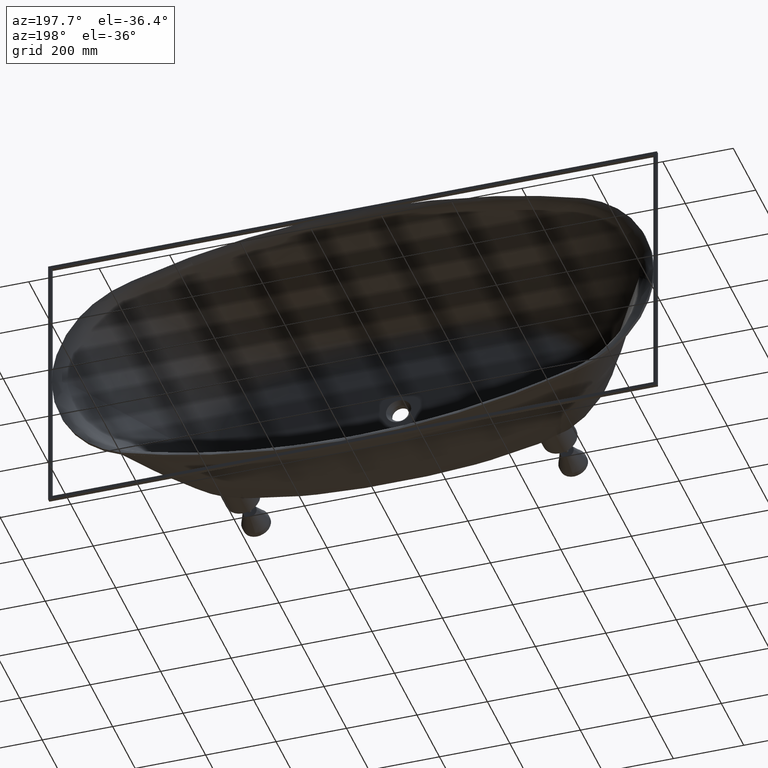
[diagram: clean part render]
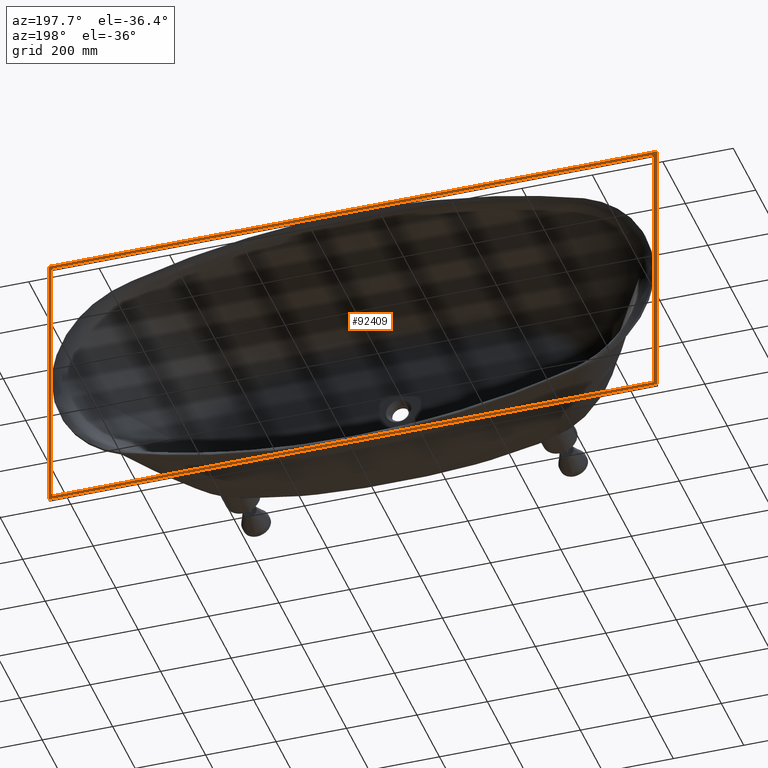
[diagram: same view with one face highlighted and labeled with its STEP entity id]
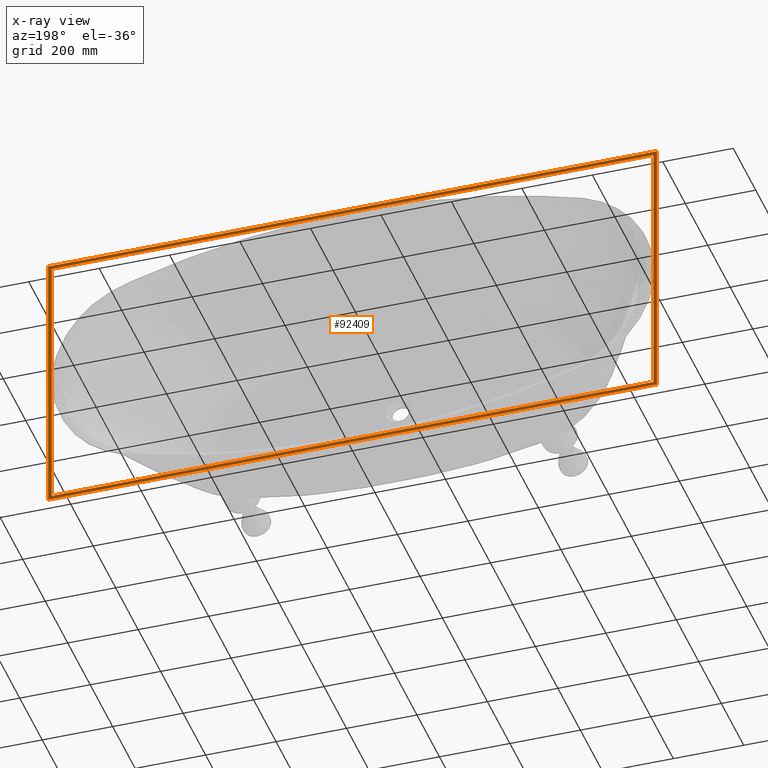
[diagram: x-ray of the same camera — body ghosted, the highlighted face saturated]
A machine part, auxiliary view. The second image highlights one B-rep face of the part: STEP entity #92409.
The next image is the same camera in x-ray: the body ghosted, the highlighted face saturated — about 0% of this face is hidden behind the body in this view.
In plain terms, the highlighted planar face has unit normal (0, 1, 0).
Its self-contained STEP definition (entity closure, byte-faithful):
#263 = PLANE ( 'NONE',  #37518 ) ;
#411 = CARTESIAN_POINT ( 'NONE',  ( -863.9999999999996589, 0.0000000000000000000, -391.4972507421642263 ) ) ;
#2017 = EDGE_CURVE ( 'NONE', #88847, #33181, #50863, .T. ) ;
#3047 = DIRECTION ( 'NONE',  ( -1.000000000000000000, 0.0000000000000000000, 0.0000000000000000000 ) ) ;
#3579 = EDGE_CURVE ( 'NONE', #50192, #75332, #13112, .T. ) ;
#3620 = CARTESIAN_POINT ( 'NONE',  ( 863.9999999999994316, 0.0000000000000000000, 391.4972507421642263 ) ) ;
#5159 = EDGE_CURVE ( 'NONE', #105674, #54755, #35156, .T. ) ;
#6037 = LINE ( 'NONE', #44412, #109193 ) ;
#8167 = ORIENTED_EDGE ( 'NONE', *, *, #63436, .F. ) ;
#9448 = EDGE_CURVE ( 'NONE', #79404, #108148, #6037, .T. ) ;
#11864 = LINE ( 'NONE', #50245, #85103 ) ;
#12487 = ORIENTED_EDGE ( 'NONE', *, *, #55854, .F. ) ;
#13112 = LINE ( 'NONE', #51491, #92724 ) ;
#16008 = CARTESIAN_POINT ( 'NONE',  ( -863.9999999999996589, 0.0000000000000000000, 391.4972507421642263 ) ) ;
#16665 = LINE ( 'NONE', #55049, #93763 ) ;
#23768 = LINE ( 'NONE', #62150, #30924 ) ;
#28152 = EDGE_CURVE ( 'NONE', #108148, #50192, #11864, .T. ) ;
#29127 = CARTESIAN_POINT ( 'NONE',  ( -853.9999999999996589, 0.0000000000000000000, 381.4972507421642263 ) ) ;
#30924 = VECTOR ( 'NONE', #100538, 1000.000000000000000 ) ;
#33181 = VERTEX_POINT ( 'NONE', #54601 ) ;
#35156 = LINE ( 'NONE', #73538, #112921 ) ;
#37518 = AXIS2_PLACEMENT_3D ( 'NONE', #38632, #77017, #115414 ) ;
#38632 = CARTESIAN_POINT ( 'NONE',  ( 0.0000000000000000000, 0.0000000000000000000, 0.0000000000000000000 ) ) ;
#44412 = CARTESIAN_POINT ( 'NONE',  ( -863.9999999999996589, 0.0000000000000000000, 391.4972507421642263 ) ) ;
#45126 = LINE ( 'NONE', #83502, #105321 ) ;
#48083 = FACE_BOUND ( 'NONE', #63363, .T. ) ;
#50192 = VERTEX_POINT ( 'NONE', #3620 ) ;
#50245 = CARTESIAN_POINT ( 'NONE',  ( 863.9999999999994316, 0.0000000000000000000, 391.4972507421642263 ) ) ;
#50863 = LINE ( 'NONE', #89253, #86693 ) ;
#51491 = CARTESIAN_POINT ( 'NONE',  ( 863.9999999999994316, 0.0000000000000000000, 391.4972507421642263 ) ) ;
#52738 = ORIENTED_EDGE ( 'NONE', *, *, #9448, .T. ) ;
#54601 = CARTESIAN_POINT ( 'NONE',  ( -853.9999999999996589, 0.0000000000000000000, -381.4972507421642263 ) ) ;
#54752 = ORIENTED_EDGE ( 'NONE', *, *, #28152, .T. ) ;
#54755 = VERTEX_POINT ( 'NONE', #71590 ) ;
#55049 = CARTESIAN_POINT ( 'NONE',  ( 863.9999999999994316, 0.0000000000000000000, -391.4972507421642263 ) ) ;
#55854 = EDGE_CURVE ( 'NONE', #33181, #105674, #23768, .T. ) ;
#58749 = CARTESIAN_POINT ( 'NONE',  ( 863.9999999999994316, 0.0000000000000000000, -391.4972507421642263 ) ) ;
#62150 = CARTESIAN_POINT ( 'NONE',  ( -853.9999999999996589, 0.0000000000000000000, 381.4972507421642263 ) ) ;
#63363 = EDGE_LOOP ( 'NONE', ( #12487, #83067, #8167, #67427 ) ) ;
#63436 = EDGE_CURVE ( 'NONE', #54755, #88847, #45126, .T. ) ;
#65097 = CARTESIAN_POINT ( 'NONE',  ( 853.9999999999994316, 0.0000000000000000000, -381.4972507421642263 ) ) ;
#67427 = ORIENTED_EDGE ( 'NONE', *, *, #5159, .F. ) ;
#69247 = EDGE_LOOP ( 'NONE', ( #74090, #116292, #52738, #54752 ) ) ;
#71590 = CARTESIAN_POINT ( 'NONE',  ( 853.9999999999994316, 0.0000000000000000000, 381.4972507421642263 ) ) ;
#73538 = CARTESIAN_POINT ( 'NONE',  ( 853.9999999999994316, 0.0000000000000000000, 381.4972507421642263 ) ) ;
#74090 = ORIENTED_EDGE ( 'NONE', *, *, #3579, .T. ) ;
#75332 = VERTEX_POINT ( 'NONE', #58749 ) ;
#77017 = DIRECTION ( 'NONE',  ( 0.0000000000000000000, 1.000000000000000000, 0.0000000000000000000 ) ) ;
#79404 = VERTEX_POINT ( 'NONE', #411 ) ;
#82795 = DIRECTION ( 'NONE',  ( -0.0000000000000000000, -0.0000000000000000000, 1.000000000000000000 ) ) ;
#83067 = ORIENTED_EDGE ( 'NONE', *, *, #2017, .F. ) ;
#83502 = CARTESIAN_POINT ( 'NONE',  ( 853.9999999999994316, 0.0000000000000000000, 381.4972507421642263 ) ) ;
#85103 = VECTOR ( 'NONE', #88631, 1000.000000000000000 ) ;
#86466 = FACE_OUTER_BOUND ( 'NONE', #69247, .T. ) ;
#86693 = VECTOR ( 'NONE', #3047, 1000.000000000000000 ) ;
#87556 = EDGE_CURVE ( 'NONE', #75332, #79404, #16665, .T. ) ;
#88631 = DIRECTION ( 'NONE',  ( 1.000000000000000000, -0.0000000000000000000, -0.0000000000000000000 ) ) ;
#88847 = VERTEX_POINT ( 'NONE', #65097 ) ;
#89253 = CARTESIAN_POINT ( 'NONE',  ( 853.9999999999994316, 0.0000000000000000000, -381.4972507421642263 ) ) ;
#89884 = DIRECTION ( 'NONE',  ( 0.0000000000000000000, 0.0000000000000000000, -1.000000000000000000 ) ) ;
#92409 = ADVANCED_FACE ( 'NONE', ( #48083, #86466 ), #263, .T. ) ;
#92724 = VECTOR ( 'NONE', #89884, 1000.000000000000000 ) ;
#93434 = DIRECTION ( 'NONE',  ( -1.000000000000000000, 0.0000000000000000000, 0.0000000000000000000 ) ) ;
#93763 = VECTOR ( 'NONE', #93434, 1000.000000000000000 ) ;
#100538 = DIRECTION ( 'NONE',  ( -0.0000000000000000000, -0.0000000000000000000, 1.000000000000000000 ) ) ;
#105321 = VECTOR ( 'NONE', #121883, 1000.000000000000000 ) ;
#105674 = VERTEX_POINT ( 'NONE', #29127 ) ;
#108148 = VERTEX_POINT ( 'NONE', #16008 ) ;
#109193 = VECTOR ( 'NONE', #82795, 1000.000000000000000 ) ;
#111941 = DIRECTION ( 'NONE',  ( 1.000000000000000000, -0.0000000000000000000, -0.0000000000000000000 ) ) ;
#112921 = VECTOR ( 'NONE', #111941, 1000.000000000000000 ) ;
#115414 = DIRECTION ( 'NONE',  ( 0.0000000000000000000, -0.0000000000000000000, 1.000000000000000000 ) ) ;
#116292 = ORIENTED_EDGE ( 'NONE', *, *, #87556, .T. ) ;
#121883 = DIRECTION ( 'NONE',  ( 0.0000000000000000000, 0.0000000000000000000, -1.000000000000000000 ) ) ;